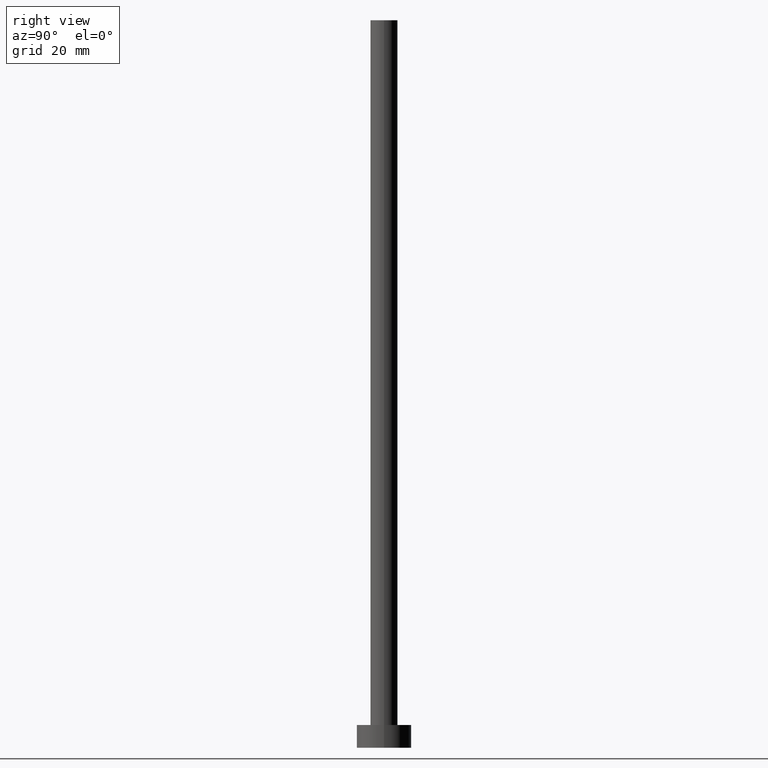
[diagram: clean part render]
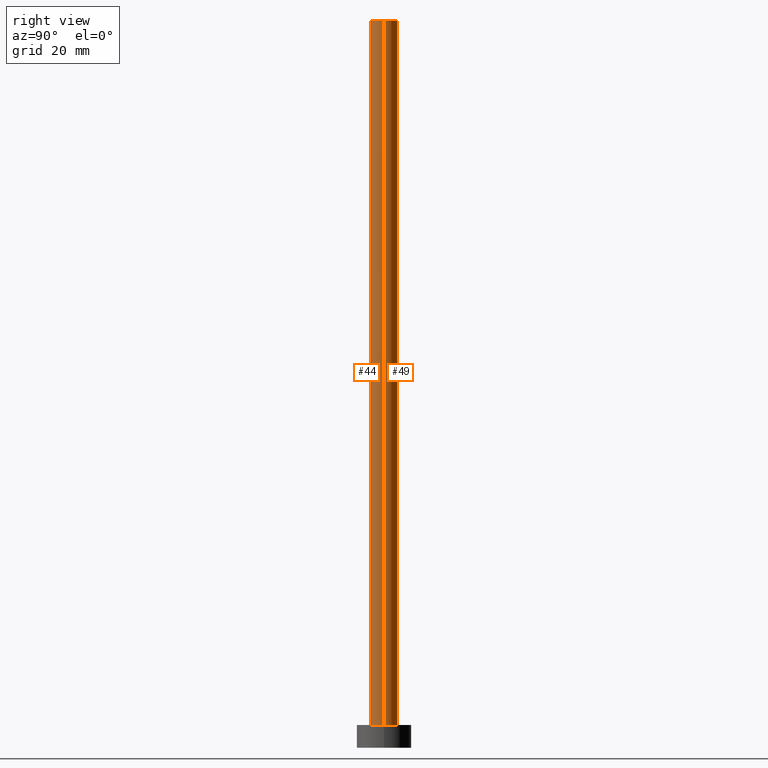
[diagram: same view with one multi-face feature highlighted, each face labeled with its STEP entity id]
A machine part, right view. The highlighted faces form ONE feature: a constant-radius fillet chain: 2 tangent blend faces with common blend radius 3 mm. The faces share edges in the B-rep.
Their STEP definitions:
[1] entity #44 (Cylinder):
#8 = ORIENTED_EDGE ( 'NONE', *, *, #80, .F. ) ;
#15 = LINE ( 'NONE', #32, #175 ) ;
#16 = DIRECTION ( 'NONE',  ( 1.000000000000000000, 0.000000000000000000, 0.000000000000000000 ) ) ;
#20 = CARTESIAN_POINT ( 'NONE',  ( 0.000000000000000000, 0.000000000000000000, 160.0000000000000000 ) ) ;
#21 = VERTEX_POINT ( 'NONE', #127 ) ;
#23 = VECTOR ( 'NONE', #155, 1000.000000000000000 ) ;
#25 = DIRECTION ( 'NONE',  ( -0.000000000000000000, -0.000000000000000000, -1.000000000000000000 ) ) ;
#28 = CIRCLE ( 'NONE', #185, 3.000000000000000444 ) ;
#32 = CARTESIAN_POINT ( 'NONE',  ( 3.000000000000000444, 3.673940397442060361E-16, 160.0000000000000000 ) ) ;
#42 = FACE_OUTER_BOUND ( 'NONE', #84, .T. ) ;
#44 = ADVANCED_FACE ( 'NONE', ( #42 ), #206, .T. ) ;
#47 = CARTESIAN_POINT ( 'NONE',  ( 3.000000000000000444, 3.673940397442060361E-16, 160.0000000000000000 ) ) ;
#80 = EDGE_CURVE ( 'NONE', #187, #21, #15, .T. ) ;
#83 = ORIENTED_EDGE ( 'NONE', *, *, #120, .F. ) ;
#84 = EDGE_LOOP ( 'NONE', ( #8, #83, #147, #167 ) ) ;
#85 = VERTEX_POINT ( 'NONE', #209 ) ;
#94 = CARTESIAN_POINT ( 'NONE',  ( 0.000000000000000000, 0.000000000000000000, 160.0000000000000000 ) ) ;
#110 = CARTESIAN_POINT ( 'NONE',  ( -3.000000000000000444, 0.000000000000000000, 5.000000000000000000 ) ) ;
#120 = EDGE_CURVE ( 'NONE', #85, #187, #28, .T. ) ;
#127 = CARTESIAN_POINT ( 'NONE',  ( 3.000000000000000444, 3.673940397442060361E-16, 5.000000000000000000 ) ) ;
#131 = DIRECTION ( 'NONE',  ( -1.000000000000000000, 0.000000000000000000, 0.000000000000000000 ) ) ;
#133 = DIRECTION ( 'NONE',  ( 0.000000000000000000, 0.000000000000000000, 1.000000000000000000 ) ) ;
#138 = DIRECTION ( 'NONE',  ( 0.000000000000000000, 0.000000000000000000, 1.000000000000000000 ) ) ;
#147 = ORIENTED_EDGE ( 'NONE', *, *, #162, .T. ) ;
#155 = DIRECTION ( 'NONE',  ( -0.000000000000000000, -0.000000000000000000, -1.000000000000000000 ) ) ;
#157 = CARTESIAN_POINT ( 'NONE',  ( -3.000000000000000444, 0.000000000000000000, 160.0000000000000000 ) ) ;
#162 = EDGE_CURVE ( 'NONE', #85, #168, #211, .T. ) ;
#167 = ORIENTED_EDGE ( 'NONE', *, *, #199, .T. ) ;
#168 = VERTEX_POINT ( 'NONE', #110 ) ;
#170 = AXIS2_PLACEMENT_3D ( 'NONE', #20, #25, #131 ) ;
#175 = VECTOR ( 'NONE', #230, 1000.000000000000000 ) ;
#177 = DIRECTION ( 'NONE',  ( 1.000000000000000000, 0.000000000000000000, 0.000000000000000000 ) ) ;
#178 = CARTESIAN_POINT ( 'NONE',  ( 0.000000000000000000, 0.000000000000000000, 5.000000000000000000 ) ) ;
#185 = AXIS2_PLACEMENT_3D ( 'NONE', #94, #133, #16 ) ;
#187 = VERTEX_POINT ( 'NONE', #47 ) ;
#199 = EDGE_CURVE ( 'NONE', #168, #21, #232, .T. ) ;
#205 = AXIS2_PLACEMENT_3D ( 'NONE', #178, #138, #177 ) ;
#206 = CYLINDRICAL_SURFACE ( 'NONE', #170, 3.000000000000000444 ) ;
#209 = CARTESIAN_POINT ( 'NONE',  ( -3.000000000000000444, 0.000000000000000000, 160.0000000000000000 ) ) ;
#211 = LINE ( 'NONE', #157, #23 ) ;
#230 = DIRECTION ( 'NONE',  ( -0.000000000000000000, -0.000000000000000000, -1.000000000000000000 ) ) ;
#232 = CIRCLE ( 'NONE', #205, 3.000000000000000444 ) ;
[2] entity #49 (Cylinder):
#11 = AXIS2_PLACEMENT_3D ( 'NONE', #43, #173, #245 ) ;
#15 = LINE ( 'NONE', #32, #175 ) ;
#21 = VERTEX_POINT ( 'NONE', #127 ) ;
#23 = VECTOR ( 'NONE', #155, 1000.000000000000000 ) ;
#26 = CYLINDRICAL_SURFACE ( 'NONE', #151, 3.000000000000000444 ) ;
#27 = DIRECTION ( 'NONE',  ( 0.000000000000000000, 0.000000000000000000, 1.000000000000000000 ) ) ;
#32 = CARTESIAN_POINT ( 'NONE',  ( 3.000000000000000444, 3.673940397442060361E-16, 160.0000000000000000 ) ) ;
#39 = EDGE_LOOP ( 'NONE', ( #184, #126, #86, #152 ) ) ;
#43 = CARTESIAN_POINT ( 'NONE',  ( 0.000000000000000000, 0.000000000000000000, 5.000000000000000000 ) ) ;
#47 = CARTESIAN_POINT ( 'NONE',  ( 3.000000000000000444, 3.673940397442060361E-16, 160.0000000000000000 ) ) ;
#49 = ADVANCED_FACE ( 'NONE', ( #207 ), #26, .T. ) ;
#74 = AXIS2_PLACEMENT_3D ( 'NONE', #153, #27, #93 ) ;
#79 = CIRCLE ( 'NONE', #74, 3.000000000000000444 ) ;
#80 = EDGE_CURVE ( 'NONE', #187, #21, #15, .T. ) ;
#85 = VERTEX_POINT ( 'NONE', #209 ) ;
#86 = ORIENTED_EDGE ( 'NONE', *, *, #247, .T. ) ;
#93 = DIRECTION ( 'NONE',  ( 1.000000000000000000, 0.000000000000000000, 0.000000000000000000 ) ) ;
#106 = DIRECTION ( 'NONE',  ( -0.000000000000000000, -0.000000000000000000, -1.000000000000000000 ) ) ;
#110 = CARTESIAN_POINT ( 'NONE',  ( -3.000000000000000444, 0.000000000000000000, 5.000000000000000000 ) ) ;
#122 = CIRCLE ( 'NONE', #11, 3.000000000000000444 ) ;
#126 = ORIENTED_EDGE ( 'NONE', *, *, #80, .T. ) ;
#127 = CARTESIAN_POINT ( 'NONE',  ( 3.000000000000000444, 3.673940397442060361E-16, 5.000000000000000000 ) ) ;
#151 = AXIS2_PLACEMENT_3D ( 'NONE', #244, #106, #188 ) ;
#152 = ORIENTED_EDGE ( 'NONE', *, *, #162, .F. ) ;
#153 = CARTESIAN_POINT ( 'NONE',  ( 0.000000000000000000, 0.000000000000000000, 160.0000000000000000 ) ) ;
#155 = DIRECTION ( 'NONE',  ( -0.000000000000000000, -0.000000000000000000, -1.000000000000000000 ) ) ;
#157 = CARTESIAN_POINT ( 'NONE',  ( -3.000000000000000444, 0.000000000000000000, 160.0000000000000000 ) ) ;
#162 = EDGE_CURVE ( 'NONE', #85, #168, #211, .T. ) ;
#168 = VERTEX_POINT ( 'NONE', #110 ) ;
#173 = DIRECTION ( 'NONE',  ( 0.000000000000000000, 0.000000000000000000, 1.000000000000000000 ) ) ;
#175 = VECTOR ( 'NONE', #230, 1000.000000000000000 ) ;
#184 = ORIENTED_EDGE ( 'NONE', *, *, #228, .F. ) ;
#187 = VERTEX_POINT ( 'NONE', #47 ) ;
#188 = DIRECTION ( 'NONE',  ( -1.000000000000000000, 0.000000000000000000, 0.000000000000000000 ) ) ;
#207 = FACE_OUTER_BOUND ( 'NONE', #39, .T. ) ;
#209 = CARTESIAN_POINT ( 'NONE',  ( -3.000000000000000444, 0.000000000000000000, 160.0000000000000000 ) ) ;
#211 = LINE ( 'NONE', #157, #23 ) ;
#228 = EDGE_CURVE ( 'NONE', #187, #85, #79, .T. ) ;
#230 = DIRECTION ( 'NONE',  ( -0.000000000000000000, -0.000000000000000000, -1.000000000000000000 ) ) ;
#244 = CARTESIAN_POINT ( 'NONE',  ( 0.000000000000000000, 0.000000000000000000, 160.0000000000000000 ) ) ;
#245 = DIRECTION ( 'NONE',  ( 1.000000000000000000, 0.000000000000000000, 0.000000000000000000 ) ) ;
#247 = EDGE_CURVE ( 'NONE', #21, #168, #122, .T. ) ;